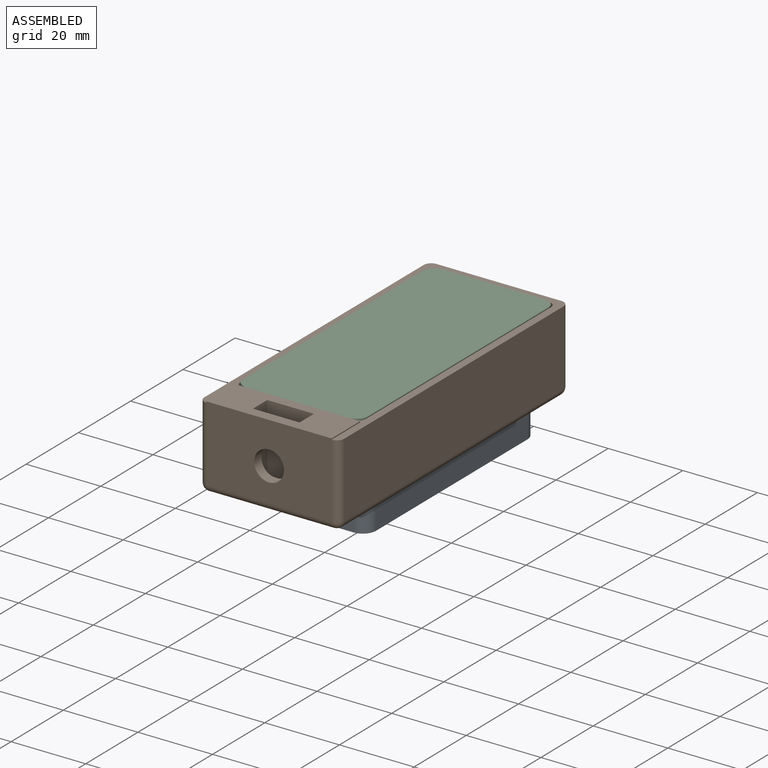
[diagram: assembled view]
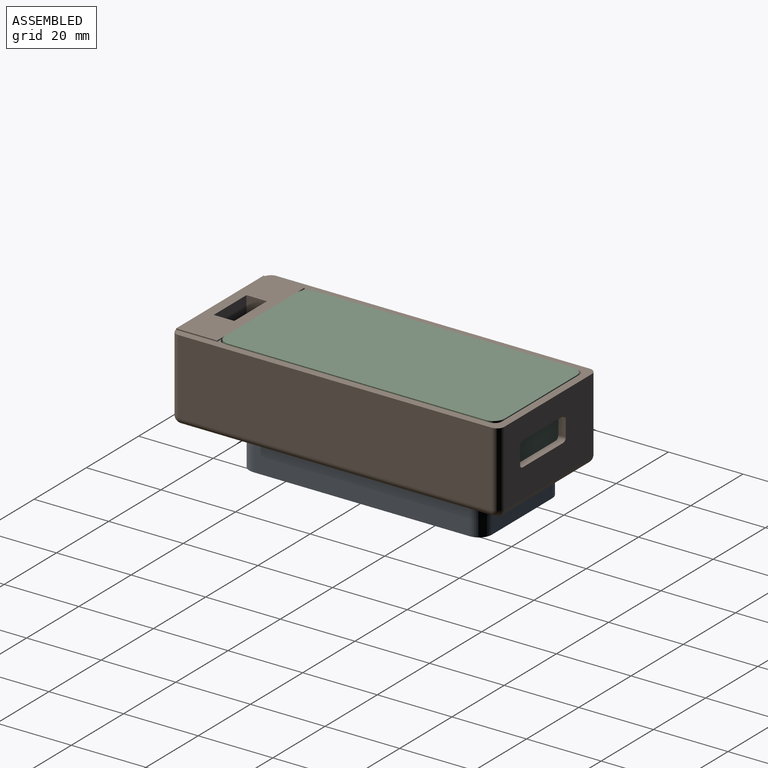
[diagram: assembled view, second angle]
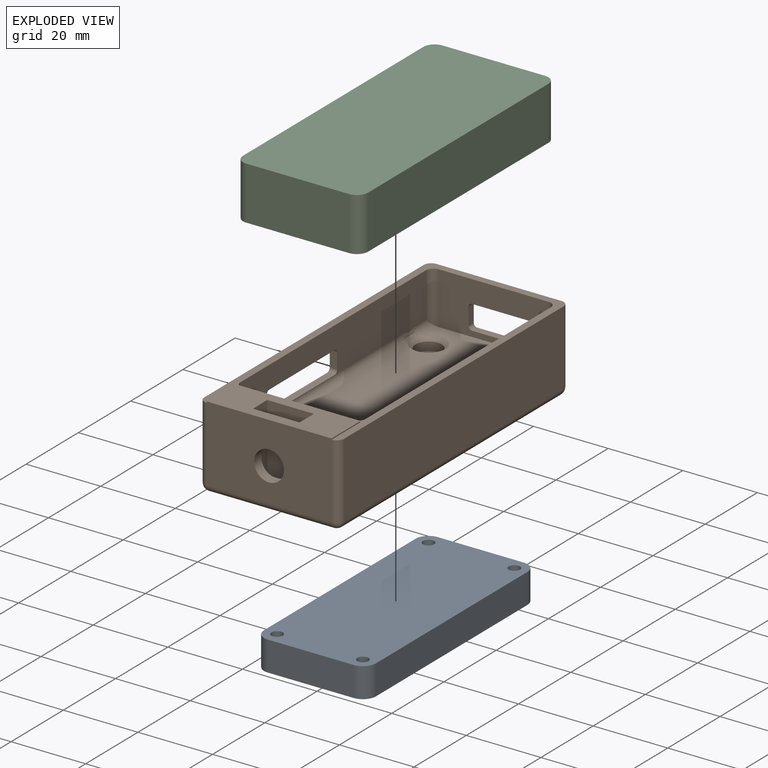
[diagram: exploded view]
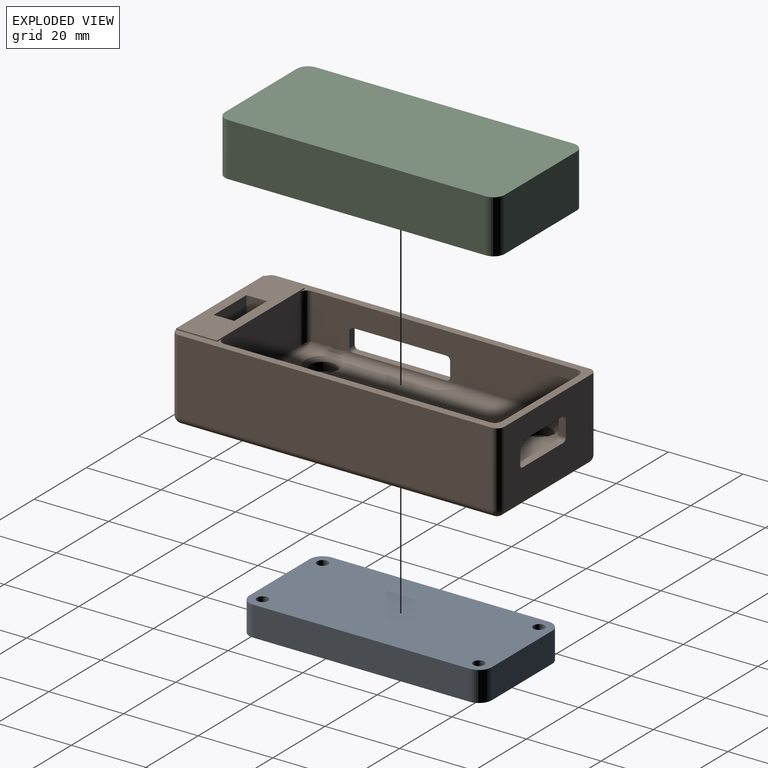
[diagram: exploded view, second angle]
ASSEMBLY  parts=3 mates=4
PART A: 14 faces, bbox 30x65x8 mm
  f0: plane 23x8mm, normal (0,-1,0), area 184mm2, adj f8,f9,f10,f13
  f1: plane 58x8mm, normal (1,0,0), area 464mm2, adj f8,f9,f10,f11
  f2: plane 23x8mm, normal (0,1,0), area 184mm2, adj f8,f9,f11,f12
  f3: cylinder r=1.5mm len=8mm, axis (0,0,-1), area 75.4mm2, adj f8,f9
  f4: cylinder r=1.5mm len=8mm, axis (0,0,-1), area 75.4mm2, adj f8,f9
  f5: cylinder r=1.5mm len=8mm, axis (0,0,-1), area 75.4mm2, adj f8,f9
  f6: cylinder r=1.5mm len=8mm, axis (0,0,-1), area 75.4mm2, adj f8,f9
  f7: plane 58x8mm, normal (-1,0,0), area 464mm2, adj f8,f9,f12,f13
  f8: plane 65x30mm, normal (0,0,1), area 1911.2mm2, adj f0,f1,f2,f3,f4,f5,f6,f7
  f9: plane 65x30mm, normal (0,0,-1), area 1911.2mm2, adj f0,f1,f2,f3,f4,f5,f6,f7
  f10: cylinder r=3.5mm len=8mm, axis (0,0,1), area 44mm2, adj f0,f1,f8,f9
  f11: cylinder r=3.5mm len=8mm, axis (0,0,-1), area 44mm2, adj f1,f2,f8,f9
  f12: cylinder r=3.5mm len=8mm, axis (0,0,1), area 44mm2, adj f2,f7,f8,f9
  f13: cylinder r=3.5mm len=8mm, axis (0,0,-1), area 44mm2, adj f0,f7,f8,f9
PART B: 81 faces, bbox 37.5x88x22.3 mm
  f0: plane 71x12.44mm, normal (1,0,0), area 693.5mm2, adj f36,f37,f38,f39,f40,f41,f43,f44
  f1: cylinder r=1.5mm len=4.7mm, axis (0,0,-1), area 44.3mm2, adj f9,f19
  f2: cylinder r=1.5mm len=4.7mm, axis (0,0,-1), area 44.3mm2, adj f9,f25
  f3: cylinder r=1.5mm len=4.7mm, axis (0,0,-1), area 44.3mm2, adj f9,f23
  f4: cylinder r=1.5mm len=4.7mm, axis (0,0,-1), area 44.3mm2, adj f9,f21
  f5: plane 33.5x11mm, normal (0,0,1), area 299.7mm2, adj f6,f7,f10,f11,f12,f13,f14,f15
  f6: plane 11x0.3mm, normal (-1,0,0), area 3.3mm2, adj f5,f10,f11,f36
  f7: plane 11x0.3mm, normal (1,0,0), area 3.3mm2, adj f5,f10,f11,f36
  f8: plane 74x29.5mm, normal (0,0,1), area 1949.9mm2, adj f26,f27,f28,f29,f30,f31,f38,f41
  f9: plane 84x33.5mm, normal (0,0,-1), area 2785.7mm2, adj f1,f2,f3,f4,f57,f60,f61,f64
  f10: plane 33.5x13.3mm, normal (0,1,0), area 393.6mm2, adj f5,f6,f7,f30,f36,f40,f48
  f11: plane 33.5x20.3mm, normal (0,-1,0), area 629.8mm2, adj f5,f6,f7,f17,f53,f56,f64
  f12: plane 18.15x5.5mm, normal (-1,0,0), area 99.8mm2, adj f5,f13,f15,f16
  f13: plane 18.15x12.5mm, normal (0,-1,0), area 226.9mm2, adj f5,f12,f14,f16
  f14: plane 18.15x5.5mm, normal (1,0,0), area 99.8mm2, adj f5,f13,f15,f16
  f15: plane 18.15x12.5mm, normal (0,1,0), area 176.6mm2, adj f5,f12,f14,f16,f17
  f16: plane 12.5x5.5mm, normal (0,0,1), area 68.7mm2, adj f12,f13,f14,f15
  f17: cylinder r=4mm len=8mm, axis (0,-1,0), area 69.1mm2, adj f11,f15
  f18: cylinder r=3.5mm len=7mm, axis (0,0,1), area 50.6mm2, adj f19,f29
  f19: plane 7x7mm, normal (0,0,1), area 31.4mm2, adj f1,f18
  f20: cylinder r=3.5mm len=7mm, axis (0,0,1), area 50.6mm2, adj f21,f27
  f21: plane 7x7mm, normal (0,0,1), area 31.4mm2, adj f4,f20
  f22: cylinder r=3.5mm len=7mm, axis (0,0,1), area 50.6mm2, adj f23,f26
  f23: plane 7x7mm, normal (0,0,1), area 31.4mm2, adj f3,f22
  f24: cylinder r=3.5mm len=7mm, axis (0,0,1), area 50.6mm2, adj f25,f28
  f25: plane 7x7mm, normal (0,0,1), area 31.4mm2, adj f2,f24
  f26: cone r=3.5mm half-angle=45deg, axis (0,0,1), area 35.5mm2, adj f8,f22,f43
  f27: cone r=3.5mm half-angle=45deg, axis (0,0,1), area 35.5mm2, adj f8,f20,f51
  f28: cone r=3.5mm half-angle=45deg, axis (0,0,1), area 35.5mm2, adj f8,f24,f47
  f29: cone r=3.5mm half-angle=45deg, axis (0,0,1), area 35.5mm2, adj f8,f18,f39
  f30: cylinder r=1mm len=29.5mm, axis (-1,0,0), area 46.3mm2, adj f8,f10,f42,f50
  f31: plane 29.5x14mm, normal (0,-1,0), area 300.1mm2, adj f8,f36,f37,f45,f73,f74,f75,f76
  f32: plane 71x12.44mm, normal (-1,0,0), area 854.7mm2, adj f36,f45,f46,f47,f48,f49,f51,f52
  f33: plane 84x20mm, normal (1,0,0), area 1680mm2, adj f36,f53,f54,f60
  f34: plane 33.5x20mm, normal (0,1,0), area 557.1mm2, adj f36,f54,f55,f57,f73,f74,f75,f76
  f35: plane 84x20mm, normal (-1,0,0), area 1518.9mm2, adj f36,f55,f56,f61,f65,f66,f67,f68
  f36: plane 88x37.5mm, normal (0,0,1), area 419mm2, adj f0,f6,f7,f10,f31,f32,f33,f34
  f37: cylinder r=2mm len=14mm, axis (0,0,-1), area 41.7mm2, adj f0,f31,f36,f38
  f38: cylinder r=2mm len=5.39mm, axis (0,1,0), area 14.6mm2, adj f0,f8,f37,f39
  f39: bspline ~6.23x2mm, area 14.1mm2, adj f0,f29,f38,f41
  f40: cylinder r=2mm len=13mm, axis (0,0,-1), area 39.3mm2, adj f0,f10,f36,f42
  f41: cylinder r=2mm len=51.78mm, axis (0,1,0), area 162.7mm2, adj f0,f8,f39,f43,f67
  f42: bspline ~2.39x2mm, area 3.3mm2, adj f30,f40,f44
  f43: bspline ~6.23x2mm, area 14.1mm2, adj f0,f26,f41,f44
  f44: cylinder r=2mm len=4.39mm, axis (0,1,0), area 12.2mm2, adj f0,f8,f42,f43
  f45: cylinder r=2mm len=14mm, axis (0,0,1), area 41.7mm2, adj f31,f32,f36,f46
  f46: cylinder r=2mm len=5.39mm, axis (0,-1,0), area 14.6mm2, adj f8,f32,f45,f47
  f47: bspline ~7.19x2.37mm, area 14.1mm2, adj f28,f32,f46,f49
  f48: cylinder r=2mm len=13mm, axis (0,0,1), area 39.3mm2, adj f10,f32,f36,f50
  f49: cylinder r=2mm len=51.78mm, axis (0,-1,0), area 162.7mm2, adj f8,f32,f47,f51
  f50: bspline ~2.39x2mm, area 3.3mm2, adj f30,f48,f52
  f51: bspline ~7.19x2.37mm, area 14.1mm2, adj f27,f32,f49,f52
  f52: cylinder r=2mm len=4.39mm, axis (0,-1,0), area 12.2mm2, adj f8,f32,f50,f51
  f53: cylinder r=2mm len=20mm, axis (0,0,1), area 62.8mm2, adj f11,f33,f36,f62
  f54: cylinder r=2mm len=20mm, axis (0,0,-1), area 62.8mm2, adj f33,f34,f36,f58
  f55: cylinder r=2mm len=20mm, axis (0,0,1), area 62.8mm2, adj f34,f35,f36,f59
  f56: cylinder r=2mm len=20mm, axis (0,0,-1), area 62.8mm2, adj f11,f35,f36,f63
  f57: cylinder r=2mm len=33.5mm, axis (-1,0,0), area 105.2mm2, adj f9,f34,f58,f59
  f58: sphere r=2mm, area 6.3mm2, adj f54,f57,f60
  f59: sphere r=2mm, area 6.3mm2, adj f55,f57,f61
  f60: cylinder r=2mm len=84mm, axis (0,1,0), area 263.9mm2, adj f9,f33,f58,f62
  f61: cylinder r=2mm len=84mm, axis (0,-1,0), area 263.9mm2, adj f9,f35,f59,f63
  f62: sphere r=2mm, area 6.3mm2, adj f53,f60,f64
  f63: sphere r=2mm, area 6.3mm2, adj f56,f61,f64
  f64: cylinder r=2mm len=33.5mm, axis (1,0,0), area 105.2mm2, adj f9,f11,f62,f63
  f65: plane 4x2mm, normal (0,-1,0), area 8mm2, adj f0,f35,f66,f72
  f66: cylinder r=1mm len=2mm, axis (-1,0,0), area 3.1mm2, adj f0,f35,f65,f67
  f67: plane 25x2mm, normal (0,0,1), area 50mm2, adj f35,f41,f66,f68
  f68: cylinder r=1mm len=2mm, axis (-1,0,0), area 3.1mm2, adj f0,f35,f67,f69
  f69: plane 4x2mm, normal (0,1,0), area 8mm2, adj f0,f35,f68,f70
  f70: cylinder r=1mm len=2mm, axis (-1,0,0), area 3.1mm2, adj f0,f35,f69,f71
  f71: plane 25x2mm, normal (0,0,-1), area 50mm2, adj f0,f35,f70,f72
  f72: cylinder r=1mm len=2mm, axis (-1,0,0), area 3.1mm2, adj f0,f35,f65,f71
  f73: cylinder r=1mm len=2mm, axis (0,1,0), area 3.1mm2, adj f31,f34,f74,f78
  f74: plane 15.5x2mm, normal (0,0,1), area 31mm2, adj f31,f34,f73,f75
  f75: cylinder r=1mm len=2mm, axis (0,1,0), area 3.1mm2, adj f31,f34,f74,f76
  f76: plane 4.5x2mm, normal (1,0,0), area 9mm2, adj f31,f34,f75,f77
  f77: cylinder r=1mm len=2mm, axis (0,1,0), area 3.1mm2, adj f31,f34,f76,f79
  f78: plane 4.5x2mm, normal (-1,0,0), area 9mm2, adj f31,f34,f73,f80
  f79: plane 15.5x2mm, normal (0,0,-1), area 31mm2, adj f31,f34,f77,f80
  f80: cylinder r=1mm len=2mm, axis (0,1,0), area 3.1mm2, adj f31,f34,f78,f79
PART C: 10 faces, bbox 33.5x75x14.3 mm
  f0: plane 69x14.3mm, normal (1,0,0), area 986.7mm2, adj f4,f5,f6,f9
  f1: plane 27.5x14.3mm, normal (0,1,0), area 393.2mm2, adj f4,f5,f6,f7
  f2: plane 69x14.3mm, normal (-1,0,0), area 986.7mm2, adj f4,f5,f7,f8
  f3: plane 27.5x14.3mm, normal (0,-1,0), area 393.2mm2, adj f4,f5,f8,f9
  f4: plane 75x33.5mm, normal (0,0,1), area 2504.8mm2, adj f0,f1,f2,f3,f6,f7,f8,f9
  f5: plane 75x33.5mm, normal (0,0,-1), area 2504.8mm2, adj f0,f1,f2,f3,f6,f7,f8,f9
  f6: cylinder r=3mm len=14.3mm, axis (0,0,1), area 67.4mm2, adj f0,f1,f4,f5
  f7: cylinder r=3mm len=14.3mm, axis (0,0,-1), area 67.4mm2, adj f1,f2,f4,f5
  f8: cylinder r=3mm len=14.3mm, axis (0,0,1), area 67.4mm2, adj f2,f3,f4,f5
  f9: cylinder r=3mm len=14.3mm, axis (0,0,-1), area 67.4mm2, adj f0,f3,f4,f5
PLACE A t=(-41.02,51.59,-21.9)mm
PLACE B t=(-41.02,46.09,-13.9)mm
PLACE C t=(-41.02,51.59,-5.9)mm
MATE cylindrical B.f4 <-> A.f5  axis (0,0,-1) through (-29.52,22.59,-13.9)mm
MATE planar B.f8 <-> C.f5  axis (0,0,1) through (-41.02,52.15,-5.9)mm
MATE planar B.f9 <-> A.f8  axis (0,0,-1) through (-41.02,47.05,-13.9)mm
MATE planar B.f10 <-> C.f3  axis (0,1,0) through (-41.02,14.09,1.77)mm
